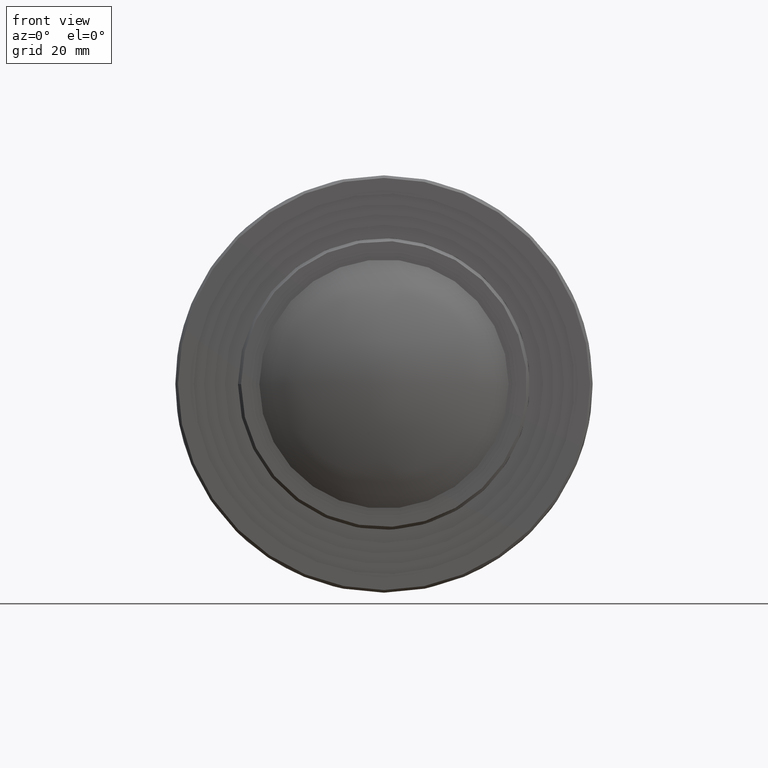
[diagram: clean part render]
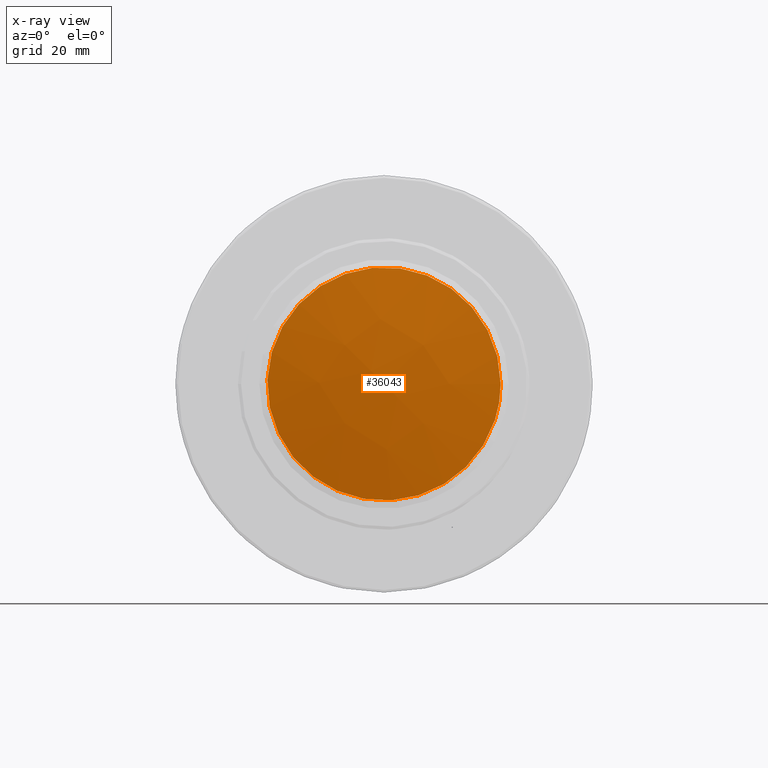
[diagram: x-ray — body ghosted, one internal face saturated and labeled with its STEP entity id]
A machine part, front view, then the same camera in x-ray: the body is ghosted and one INTERNAL B-rep face — a face not visible from any outside direction — is saturated and labeled: STEP entity #36043.
In plain terms, the highlighted face is a freeform B-spline surface patch.
Its self-contained STEP definition (entity closure, byte-faithful):
#269 = CARTESIAN_POINT ( 'NONE',  ( -22.35779403711563162, 11.64133294087607418, -1.476927812265983686 ) ) ;
#837 = CARTESIAN_POINT ( 'NONE',  ( -20.09333415581996718, 11.64133294087605996, -9.913429785393015337 ) ) ;
#1146 = CARTESIAN_POINT ( 'NONE',  ( -7.659778440923409093, 7.560089004828478565, 7.767749789452567555 ) ) ;
#1395 = CARTESIAN_POINT ( 'NONE',  ( -17.74029607896111926, 11.64133294087615234, 13.62666218234597615 ) ) ;
#1949 = CARTESIAN_POINT ( 'NONE',  ( 18.98449459865008393, 11.64133294087618253, -11.83174345056767685 ) ) ;
#3057 = CARTESIAN_POINT ( 'NONE',  ( 11.18026544022974633, 11.64133294087606174, -19.37554843610612565 ) ) ;
#4152 = CARTESIAN_POINT ( 'NONE',  ( -1.473040168404990968, 11.64133294087610082, -22.35680384764125961 ) ) ;
#7088 = CARTESIAN_POINT ( 'NONE',  ( 22.21288703965530331, 11.64133294087606885, 2.929178588770595226 ) ) ;
#7637 = CARTESIAN_POINT ( 'NONE',  ( -10.86209283199451470, 11.64133294087610615, -19.54532517324486207 ) ) ;
#7949 = CARTESIAN_POINT ( 'NONE',  ( 22.62191145181333241, 10.87630104048030866, 7.527054095992546934 ) ) ;
#8204 = CARTESIAN_POINT ( 'NONE',  ( -18.19009607393680739, 11.64133294087605996, -13.02017424181411798 ) ) ;
#8514 = CARTESIAN_POINT ( 'NONE',  ( 7.659779434828853262, 7.560089004828480341, 7.767749789452571108 ) ) ;
#8770 = CARTESIAN_POINT ( 'NONE',  ( -22.35779403711563873, 11.64133294087607418, 0.7384645127530546915 ) ) ;
#9335 = CARTESIAN_POINT ( 'NONE',  ( -21.18460235371994571, 11.64133294087606352, -7.184842750543054990 ) ) ;
#9899 = CARTESIAN_POINT ( 'NONE',  ( -22.06647641602486232, 11.64133294087610615, 3.670782746972089949 ) ) ;
#10200 = CARTESIAN_POINT ( 'NONE',  ( -22.62191045790787669, 14.12844960276446749, 22.22568256372701612 ) ) ;
#11009 = CARTESIAN_POINT ( 'NONE',  ( 0.7138588870310299539, 11.64133294087610615, -22.35828161391815527 ) ) ;
#11273 = ORIENTED_EDGE ( 'NONE', *, *, #11978, .F. ) ;
#11978 = EDGE_CURVE ( 'NONE', #56620, #56620, #92923, .T. ) ;
#13913 = CARTESIAN_POINT ( 'NONE',  ( 17.75159608181341397, 11.64133294087610437, 13.61230911997237136 ) ) ;
#14588 =( BOUNDED_SURFACE ( )  B_SPLINE_SURFACE ( 3, 3, ( 
 ( #86384, #51753, #18167, #10200 ),
 ( #42647, #60821, #1146, #69338 ),
 ( #35816, #27268, #8514, #16468 ),
 ( #111987, #86950, #7949, #43214 ) ),
 .UNSPECIFIED., .F., .F., .F. ) 
 B_SPLINE_SURFACE_WITH_KNOTS ( ( 4, 4 ),
 ( 4, 4 ),
 ( 0.000000000000000000, 1.000000000000000000 ),
 ( 0.000000000000000000, 1.000000000000000000 ),
 .UNSPECIFIED. ) 
 GEOMETRIC_REPRESENTATION_ITEM ( )  RATIONAL_B_SPLINE_SURFACE ( (
 ( 1.000000000000000000, 0.9842577219901453844, 0.9842577219901453844, 1.000000000000000000),
 ( 0.9844457713611728389, 0.9689483523427794287, 0.9689483523427794287, 0.9844457713611728389),
 ( 0.9844457713611728389, 0.9689483523427794287, 0.9689483523427794287, 0.9844457713611728389),
 ( 1.000000000000000000, 0.9842577219901453844, 0.9842577219901453844, 1.000000000000000000) ) ) 
 REPRESENTATION_ITEM ( '' )  SURFACE ( )  );
#16161 = CARTESIAN_POINT ( 'NONE',  ( 20.09333514972543711, 11.64133294087610082, 9.913430594219764913 ) ) ;
#16468 = CARTESIAN_POINT ( 'NONE',  ( 7.659779434828854150, 10.91623286002648285, 22.93640234854041537 ) ) ;
#16721 = CARTESIAN_POINT ( 'NONE',  ( -22.17537734375683200, 11.64133294087614345, 2.944246340129760497 ) ) ;
#17027 = FACE_OUTER_BOUND ( 'NONE', #33217, .T. ) ;
#17284 = CARTESIAN_POINT ( 'NONE',  ( -3.637970415932755053, 11.64133294087610437, 22.06289186990511908 ) ) ;
#17856 = CARTESIAN_POINT ( 'NONE',  ( -5.088072194253654423, 11.64133294087609727, -21.77424512058896156 ) ) ;
#18167 = CARTESIAN_POINT ( 'NONE',  ( -22.62191045790787669, 10.87630104048030866, 7.527054095992546934 ) ) ;
#18426 = CARTESIAN_POINT ( 'NONE',  ( -14.75371227262334450, 11.64133294087610437, 16.86344587673302442 ) ) ;
#18989 = CARTESIAN_POINT ( 'NONE',  ( -16.31977573429784201, 11.64133294087610970, 15.29967669196555669 ) ) ;
#19537 = CARTESIAN_POINT ( 'NONE',  ( -2.923532648136291989, 11.64133294087605819, -22.21459590613452306 ) ) ;
#20091 = CARTESIAN_POINT ( 'NONE',  ( 22.06647740993014395, 11.64133294087610260, -3.670781938145239121 ) ) ;
#20635 = CARTESIAN_POINT ( 'NONE',  ( 11.80679369332493778, 11.64133294087606529, -19.00003027000534672 ) ) ;
#24687 = CARTESIAN_POINT ( 'NONE',  ( 21.61010433526136509, 11.64133294087610260, 5.780379388491497572 ) ) ;
#25260 = CARTESIAN_POINT ( 'NONE',  ( -9.884780791987637372, 11.64133294087606707, 20.06741966905830310 ) ) ;
#25825 = CARTESIAN_POINT ( 'NONE',  ( 1.473041162310467334, 11.64133294087606707, 22.35680465646793991 ) ) ;
#26390 = CARTESIAN_POINT ( 'NONE',  ( -11.80679269941959575, 11.64133294087610970, 19.00003107883234676 ) ) ;
#26962 = CARTESIAN_POINT ( 'NONE',  ( -11.81277153368808186, 11.64133294087614345, -18.98591315486437381 ) ) ;
#27268 = CARTESIAN_POINT ( 'NONE',  ( 7.659779434828853262, 7.560089004828480341, -7.767748980625770017 ) ) ;
#27517 = CARTESIAN_POINT ( 'NONE',  ( 5.801523092724989894, 11.64133294087610793, 21.59510604121981103 ) ) ;
#28072 = CARTESIAN_POINT ( 'NONE',  ( 20.37064259726352233, 11.64133294087606174, -9.243672246231776413 ) ) ;
#29176 = CARTESIAN_POINT ( 'NONE',  ( 14.75371326652884107, 11.64133294087610260, -16.86344506790624820 ) ) ;
#29723 = CARTESIAN_POINT ( 'NONE',  ( 22.17537833766223088, 11.64133294087614701, -2.944245531302995822 ) ) ;
#33217 = EDGE_LOOP ( 'NONE', ( #11273 ) ) ;
#33797 = CARTESIAN_POINT ( 'NONE',  ( 2.923533642041759695, 11.64133294087614523, 22.21459671496145560 ) ) ;
#34366 = CARTESIAN_POINT ( 'NONE',  ( -21.63671932247839891, 11.64133294087610970, 5.818557923439682256 ) ) ;
#34930 = CARTESIAN_POINT ( 'NONE',  ( 10.86209382589999350, 11.64133294087610437, 19.54532598207166316 ) ) ;
#35505 = CARTESIAN_POINT ( 'NONE',  ( -17.75159508790787655, 11.64133294087606352, -13.61230831114557382 ) ) ;
#35816 = CARTESIAN_POINT ( 'NONE',  ( 7.659779434828852374, 10.91623286002647752, -22.93640153971362494 ) ) ;
#36043 = ADVANCED_FACE ( 'NONE', ( #17027 ), #14588, .F. ) ;
#36069 = CARTESIAN_POINT ( 'NONE',  ( 7.204215940404965046, 11.64133294087605819, 21.17793720180000605 ) ) ;
#36613 = CARTESIAN_POINT ( 'NONE',  ( 22.32129807525090470, 11.64133294087614345, -1.475004995330093882 ) ) ;
#37173 = CARTESIAN_POINT ( 'NONE',  ( 20.05308577514810153, 11.64133294087610260, -9.913744315872268231 ) ) ;
#38283 = CARTESIAN_POINT ( 'NONE',  ( 22.35779503102108734, 11.64133294087606174, 4.044133785447920348E-07 ) ) ;
#38835 = CARTESIAN_POINT ( 'NONE',  ( 5.790999733592568255, 11.64133294087614523, -21.64421043191850202 ) ) ;
#40085 = CARTESIAN_POINT ( 'NONE',  ( 20.93484818533709557, 11.64133294087610793, 7.882889055408130119 ) ) ;
#42330 = CARTESIAN_POINT ( 'NONE',  ( -6.154762699310046159, 11.64133294087610615, -21.49705879227872529 ) ) ;
#42647 = CARTESIAN_POINT ( 'NONE',  ( -7.659778440923409093, 10.91623286002647575, -22.93640153971362849 ) ) ;
#42900 = CARTESIAN_POINT ( 'NONE',  ( -14.77779817668420748, 11.64133294087610437, -16.84086141778644929 ) ) ;
#43214 = CARTESIAN_POINT ( 'NONE',  ( 22.62191145181332885, 14.12844960276446749, 22.22568256372701612 ) ) ;
#43468 = CARTESIAN_POINT ( 'NONE',  ( -7.204214946499490679, 11.64133294087610437, -21.17793639297326180 ) ) ;
#44032 = CARTESIAN_POINT ( 'NONE',  ( -19.36047309867912602, 11.64133294087606529, 11.20627657923644982 ) ) ;
#44590 = CARTESIAN_POINT ( 'NONE',  ( -22.21288604574983339, 11.64133294087605996, -2.929177779943785254 ) ) ;
#45138 = CARTESIAN_POINT ( 'NONE',  ( 9.884781785893114403, 11.64133294087606174, -20.06741886023148425 ) ) ;
#45703 = CARTESIAN_POINT ( 'NONE',  ( 16.31977672820332259, 11.64133294087610260, -15.29967588313872717 ) ) ;
#47371 = CARTESIAN_POINT ( 'NONE',  ( 18.17440697798760496, 11.64133294087618786, -13.04193687535381940 ) ) ;
#50880 = CARTESIAN_POINT ( 'NONE',  ( 16.81664985534691681, 11.64133294087610260, 14.75175957859150344 ) ) ;
#51441 = CARTESIAN_POINT ( 'NONE',  ( -21.61010334135589872, 11.64133294087606352, -5.780378579664750660 ) ) ;
#51753 = CARTESIAN_POINT ( 'NONE',  ( -22.62191045790788024, 10.87630104048030866, -7.527053287165747619 ) ) ;
#52009 = CARTESIAN_POINT ( 'NONE',  ( -8.576147550022813704, 11.64133294087618786, -20.68593610638865243 ) ) ;
#52579 = CARTESIAN_POINT ( 'NONE',  ( 9.894139556676835312, 11.64133294087606352, 20.06271116502617957 ) ) ;
#53140 = CARTESIAN_POINT ( 'NONE',  ( -20.05308478124258542, 11.64133294087605996, 9.913745124699023137 ) ) ;
#53698 = CARTESIAN_POINT ( 'NONE',  ( -18.17440598408204977, 11.64133294087614878, 13.04193768418057608 ) ) ;
#54247 = CARTESIAN_POINT ( 'NONE',  ( 1.444698684535777655, 11.64133294087610437, -22.32321436163925199 ) ) ;
#54414 = CARTESIAN_POINT ( 'NONE',  ( 22.35779503102108734, 11.64133294087606174, 4.044133767156008801E-07 ) ) ;
#55353 = CARTESIAN_POINT ( 'NONE',  ( 21.63672031638368409, 11.64133294087610082, -5.818557114612846526 ) ) ;
#55899 = CARTESIAN_POINT ( 'NONE',  ( 2.910952088872877042, 11.64133294087610437, -22.17052897606296824 ) ) ;
#56620 = VERTEX_POINT ( 'NONE', #54414 ) ;
#59952 = CARTESIAN_POINT ( 'NONE',  ( -1.444697690630291742, 11.64133294087615944, 22.32321517046605663 ) ) ;
#60510 = CARTESIAN_POINT ( 'NONE',  ( -19.40672319267962820, 11.64133294087605108, -11.19751676045915190 ) ) ;
#60821 = CARTESIAN_POINT ( 'NONE',  ( -7.659778440923409093, 7.560089004828478565, -7.767748980625773569 ) ) ;
#61081 = CARTESIAN_POINT ( 'NONE',  ( -9.894138678728467085, 11.64133294087610260, -20.06271063829205303 ) ) ;
#61650 = CARTESIAN_POINT ( 'NONE',  ( -3.998912524146048142, 11.64133294087610437, 22.00030053829731713 ) ) ;
#62207 = CARTESIAN_POINT ( 'NONE',  ( -21.21341120625414689, 11.64133294087610082, 7.211963329467912409 ) ) ;
#62761 = CARTESIAN_POINT ( 'NONE',  ( 3.637971409838228531, 11.64133294087609904, -22.06289106107831088 ) ) ;
#63860 = CARTESIAN_POINT ( 'NONE',  ( 16.81347492199175520, 11.64133294087610970, -14.75503641594414184 ) ) ;
#64966 = CARTESIAN_POINT ( 'NONE',  ( 17.74029707286653945, 11.64133294087610615, -13.62666137351917861 ) ) ;
#66790 = CARTESIAN_POINT ( 'NONE',  ( 16.32471225885619148, 11.64133294087605819, 15.29400276971081141 ) ) ;
#68470 = CARTESIAN_POINT ( 'NONE',  ( -5.790998739687055696, 11.64133294087610437, 21.64421124074517166 ) ) ;
#69036 = CARTESIAN_POINT ( 'NONE',  ( -0.7138578931255553650, 11.64133294087606529, 22.35828242274482491 ) ) ;
#69338 = CARTESIAN_POINT ( 'NONE',  ( -7.659778440923407317, 10.91623286002647930, 22.93640234854041182 ) ) ;
#69597 = CARTESIAN_POINT ( 'NONE',  ( -5.801522098819516415, 11.64133294087610437, -21.59510523239304902 ) ) ;
#70169 = CARTESIAN_POINT ( 'NONE',  ( -9.214691200485681577, 11.64133294087614878, 20.38373208944036818 ) ) ;
#70733 = CARTESIAN_POINT ( 'NONE',  ( -7.184629779365477198, 11.64133294087614345, 21.22254503162027817 ) ) ;
#71280 = CARTESIAN_POINT ( 'NONE',  ( 2.543853872228191815, 11.64133294087610615, -22.21565420921305289 ) ) ;
#71836 = CARTESIAN_POINT ( 'NONE',  ( 21.21341220015957774, 11.64133294087605819, -7.211962520641156615 ) ) ;
#72935 = CARTESIAN_POINT ( 'NONE',  ( -4.727092210526843807, 11.64133294087606352, -21.85545299723153789 ) ) ;
#73491 = CARTESIAN_POINT ( 'NONE',  ( 22.35779503102109445, 11.64133294087606352, -0.7384637039263062253 ) ) ;
#74169 = CARTESIAN_POINT ( 'NONE',  ( 12.12518127867660134, 11.64133294087606529, 18.78792221842598309 ) ) ;
#74732 = CARTESIAN_POINT ( 'NONE',  ( 19.40672418658510168, 11.64133294087610615, 11.19751756928595121 ) ) ;
#76983 = CARTESIAN_POINT ( 'NONE',  ( 11.18131592389560680, 11.64133294087614523, 19.36452162368104979 ) ) ;
#77552 = CARTESIAN_POINT ( 'NONE',  ( -13.62426824146031734, 11.64133294087610615, 17.78686344722390444 ) ) ;
#78127 = CARTESIAN_POINT ( 'NONE',  ( 4.727093204432304852, 11.64133294087614701, 21.85545380605849175 ) ) ;
#78691 = CARTESIAN_POINT ( 'NONE',  ( -16.32471126495073932, 11.64133294087610437, -15.29400196088410091 ) ) ;
#79250 = CARTESIAN_POINT ( 'NONE',  ( -21.78705179185741514, 11.64133294087606352, -5.072049302956802563 ) ) ;
#79804 = CARTESIAN_POINT ( 'NONE',  ( 9.214692194391124858, 11.64133294087614701, -20.38373128061356354 ) ) ;
#83260 = CARTESIAN_POINT ( 'NONE',  ( 22.35779503102107668, 11.64133294087605819, 1.476928621092737481 ) ) ;
#83821 = CARTESIAN_POINT ( 'NONE',  ( 22.35779503102108734, 11.64133294087606174, 4.044133785447920348E-07 ) ) ;
#85515 = CARTESIAN_POINT ( 'NONE',  ( 13.65239626622834201, 11.64133294087607418, 17.76636425883793180 ) ) ;
#86073 = CARTESIAN_POINT ( 'NONE',  ( -22.32129708134550583, 11.64133294087614345, 1.475005804156844347 ) ) ;
#86384 = CARTESIAN_POINT ( 'NONE',  ( -22.62191045790788024, 14.12844960276446393, -22.22568175490021858 ) ) ;
#86635 = CARTESIAN_POINT ( 'NONE',  ( -12.12518028477112786, 11.64133294087606174, -18.78792140959928147 ) ) ;
#86950 = CARTESIAN_POINT ( 'NONE',  ( 22.62191145181332885, 10.87630104048030866, -7.527053287165747619 ) ) ;
#87215 = CARTESIAN_POINT ( 'NONE',  ( -18.98449360474453584, 11.64133294087614878, 11.83174425939443708 ) ) ;
#87780 = CARTESIAN_POINT ( 'NONE',  ( -20.37064160335810570, 11.64133294087610260, 9.243673055058527765 ) ) ;
#92923 = B_SPLINE_CURVE_WITH_KNOTS ( 'NONE', 3,
 ( #83821, #83260, #7088, #111121, #24687, #94068, #40085, #16161, #74732, #109430, #13913, #50880, #66790, #101466, #85515, #74169, #111676, #76983, #34930, #52579, #94620, #36069, #96327, #27517, #103146, #78127, #33797, #25825, #69036, #59952, #103715, #95757, #17284, #61650, #68470, #70733, #70169, #25260, #105413, #26390, #77552, #18426, #18989, #112248, #1395, #53698, #87215, #44032, #53140, #87780, #62207, #34366, #9899, #16721, #86073, #8770, #269, #44590, #79250, #51441, #9335, #104287, #837, #60510, #8204, #35505, #104857, #78691, #42900, #95187, #86635, #26962, #96870, #7637, #61081, #52009, #43468, #42330, #69597, #17856, #72935, #19537, #4152, #11009, #54247, #71280, #55899, #62761, #97987, #38835, #98541, #79804, #45138, #3057, #20635, #97422, #29176, #45703, #63860, #64966, #47371, #1949, #106517, #37173, #28072, #71836, #55353, #20091, #29723, #36613, #73491, #38283 ),
 .UNSPECIFIED., .T., .F.,
 ( 4, 2, 2, 2, 2, 2, 2, 2, 2, 2, 1, 2, 2, 2, 2, 2, 2, 2, 2, 2, 2, 2, 2, 2, 2, 2, 2, 2, 2, 2, 2, 2, 2, 2, 2, 2, 2, 2, 1, 2, 2, 2, 2, 2, 2, 2, 2, 2, 2, 2, 2, 2, 2, 2, 2, 2, 4 ),
 ( 0.000000000000000000, 0.004367896175512378520, 0.006551844263268564311, 0.008735792351024751837, 0.01310368852653711995, 0.01528763661429330400, 0.01747158470204948633, 0.02183948087756184056, 0.02293145492143993172, 0.02402342896531802288, 0.02620737705307420520, 0.02839132514083037712, 0.02948329918470846828, 0.03057527322858655944, 0.03494316940409891020, 0.03712711749185508558, 0.03821909153573316981, 0.03931106557961126097, 0.04367896175512361173, 0.04586290984287978711, 0.04804685793063596250, 0.05241475410614830632, 0.05459870219390448171, 0.05678265028166065709, 0.05896659836941683247, 0.06115054645717300091, 0.06551844263268535862, 0.06770239072044154094, 0.06988633880819772326, 0.07425423498371007403, 0.07643818307146624247, 0.07862213115922242479, 0.08299002733473477555, 0.08517397542249093012, 0.08735792351024711244, 0.09172581968575947708, 0.09281779372963756825, 0.09390976777351565941, 0.09609371586127185560, 0.09827766394902803793, 0.09936963799290614296, 0.1004616120367842341, 0.1048295082122965988, 0.1070134563000527811, 0.1081054303439308861, 0.1091974043878089773, 0.1135653005633213558, 0.1157492486510775381, 0.1179331967388337343, 0.1223010929143461128, 0.1244850410021022952, 0.1266689890898584914, 0.1288529371776146737, 0.1310368852653708838, 0.1354047814408832484, 0.1375887295286394030, 0.1397726776163956131 ),
 .UNSPECIFIED. ) ;
#94068 = CARTESIAN_POINT ( 'NONE',  ( 21.18460334762541919, 11.64133294087610082, 7.184843559369804566 ) ) ;
#94620 = CARTESIAN_POINT ( 'NONE',  ( 8.576148543928326262, 11.64133294087623050, 20.68593691521551037 ) ) ;
#95187 = CARTESIAN_POINT ( 'NONE',  ( -13.65239527232287031, 11.64133294087605819, -17.76636345001120176 ) ) ;
#95757 = CARTESIAN_POINT ( 'NONE',  ( -2.910951094967410668, 11.64133294087610793, 22.17052978488977288 ) ) ;
#96327 = CARTESIAN_POINT ( 'NONE',  ( 6.154763693215525855, 11.64133294087606529, 21.49705960110547664 ) ) ;
#96870 = CARTESIAN_POINT ( 'NONE',  ( -11.18131492999013510, 11.64133294087614701, -19.36452081485424870 ) ) ;
#97422 = CARTESIAN_POINT ( 'NONE',  ( 13.62426923536568069, 11.64133294087606174, -17.78686263839690440 ) ) ;
#97987 = CARTESIAN_POINT ( 'NONE',  ( 3.998913518051570914, 11.64133294087614168, -22.00029972947065460 ) ) ;
#98541 = CARTESIAN_POINT ( 'NONE',  ( 7.184630773270921367, 11.64133294087614168, -21.22254422279346642 ) ) ;
#101466 = CARTESIAN_POINT ( 'NONE',  ( 14.77779917058967030, 11.64133294087606529, 16.84086222661317933 ) ) ;
#103146 = CARTESIAN_POINT ( 'NONE',  ( 5.088073188159131455, 11.64133294087610437, 21.77424592941572001 ) ) ;
#103715 = CARTESIAN_POINT ( 'NONE',  ( -2.543852878322719668, 11.64133294087614345, 22.21565501803985043 ) ) ;
#104287 = CARTESIAN_POINT ( 'NONE',  ( -20.93484719143161854, 11.64133294087606529, -7.882888246581372549 ) ) ;
#104857 = CARTESIAN_POINT ( 'NONE',  ( -16.81664886144139714, 11.64133294087606352, -14.75175876976470057 ) ) ;
#105413 = CARTESIAN_POINT ( 'NONE',  ( -11.18026444632428529, 11.64133294087606707, 19.37554924493292674 ) ) ;
#106517 = CARTESIAN_POINT ( 'NONE',  ( 19.36047409258464214, 11.64133294087610615, -11.20627577040968248 ) ) ;
#109430 = CARTESIAN_POINT ( 'NONE',  ( 18.19009706784229508, 11.64133294087610437, 13.02017505064091374 ) ) ;
#111121 = CARTESIAN_POINT ( 'NONE',  ( 21.78705278576287441, 11.64133294087606352, 5.072050111783604542 ) ) ;
#111676 = CARTESIAN_POINT ( 'NONE',  ( 11.81277252759355001, 11.64133294087614878, 18.98591396369117845 ) ) ;
#111987 = CARTESIAN_POINT ( 'NONE',  ( 22.62191145181332530, 14.12844960276446393, -22.22568175490021858 ) ) ;
#112248 = CARTESIAN_POINT ( 'NONE',  ( -16.81347392808632080, 11.64133294087614878, 14.75503722477094115 ) ) ;